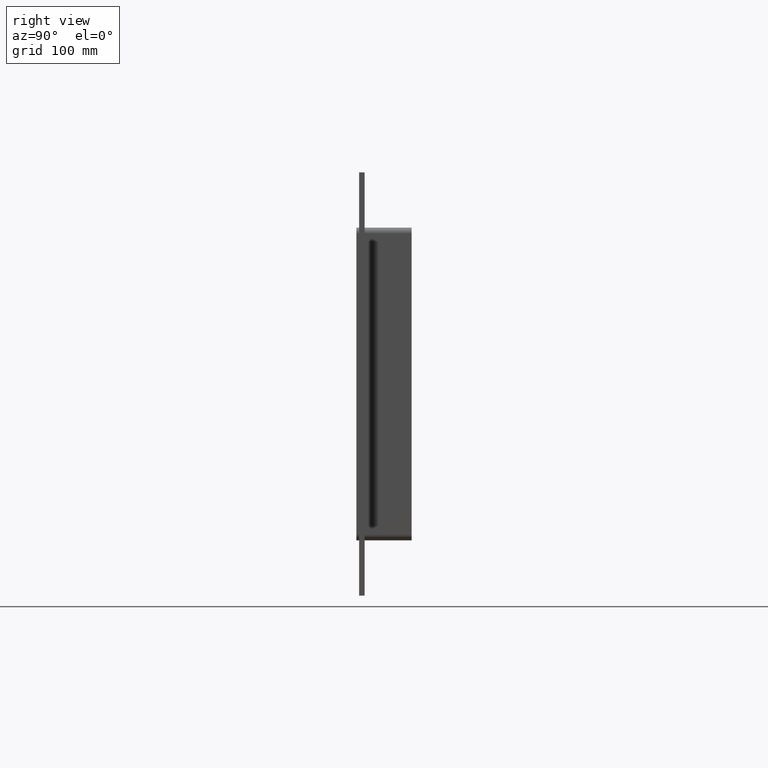
[diagram: clean part render]
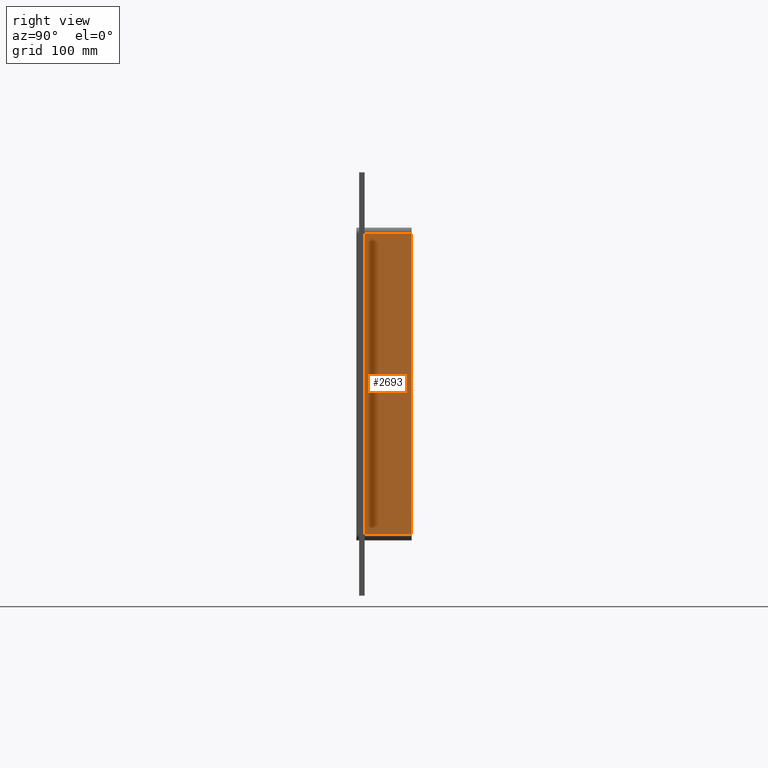
[diagram: same view with one face highlighted and labeled with its STEP entity id]
A machine part, right view. The second image highlights one B-rep face of the part: STEP entity #2693.
In plain terms, the highlighted planar face has unit normal (1, 0, 0).
Its self-contained STEP definition (entity closure, byte-faithful):
#1097=CARTESIAN_POINT('',(262.0,57.0,-163.5));
#1098=VERTEX_POINT('',#1097);
#1148=CARTESIAN_POINT('',(262.0,57.0,163.5));
#1149=VERTEX_POINT('',#1148);
#1157=CARTESIAN_POINT('',(262.0,57.0,163.5));
#1158=DIRECTION('',(0.0,0.0,-1.0));
#1159=VECTOR('',#1158,327.0);
#1160=LINE('',#1157,#1159);
#1161=EDGE_CURVE('',#1149,#1098,#1160,.T.);
#2332=CARTESIAN_POINT('',(262.0,6.000000000000001,-163.5));
#2333=VERTEX_POINT('',#2332);
#2341=CARTESIAN_POINT('',(262.0,6.000000000000001,163.5));
#2342=VERTEX_POINT('',#2341);
#2343=CARTESIAN_POINT('',(262.0,6.000000000000001,163.5));
#2344=DIRECTION('',(0.0,0.0,-1.0));
#2345=VECTOR('',#2344,327.0);
#2346=LINE('',#2343,#2345);
#2347=EDGE_CURVE('',#2342,#2333,#2346,.T.);
#2644=CARTESIAN_POINT('',(262.0,6.000000000000001,163.5));
#2645=DIRECTION('',(0.0,1.0,0.0));
#2646=VECTOR('',#2645,51.0);
#2647=LINE('',#2644,#2646);
#2648=EDGE_CURVE('',#2342,#1149,#2647,.T.);
#2677=CARTESIAN_POINT('',(262.0,0.0,169.50000000000003));
#2678=DIRECTION('',(1.0,0.0,0.0));
#2679=DIRECTION('',(0.0,0.0,-1.0));
#2680=AXIS2_PLACEMENT_3D('',#2677,#2678,#2679);
#2681=PLANE('',#2680);
#2682=ORIENTED_EDGE('',*,*,#2347,.T.);
#2683=CARTESIAN_POINT('',(262.0,57.0,-163.5));
#2684=DIRECTION('',(0.0,-1.0,0.0));
#2685=VECTOR('',#2684,51.0);
#2686=LINE('',#2683,#2685);
#2687=EDGE_CURVE('',#1098,#2333,#2686,.T.);
#2688=ORIENTED_EDGE('',*,*,#2687,.F.);
#2689=ORIENTED_EDGE('',*,*,#1161,.F.);
#2690=ORIENTED_EDGE('',*,*,#2648,.F.);
#2691=EDGE_LOOP('',(#2682,#2688,#2689,#2690));
#2692=FACE_OUTER_BOUND('',#2691,.T.);
#2693=ADVANCED_FACE('',(#2692),#2681,.T.);